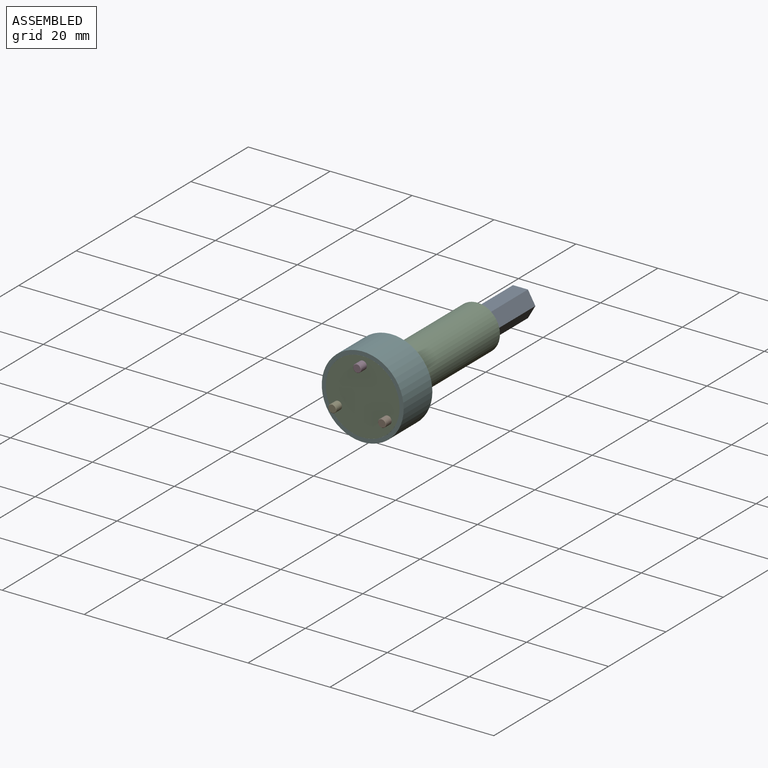
[diagram: assembled view]
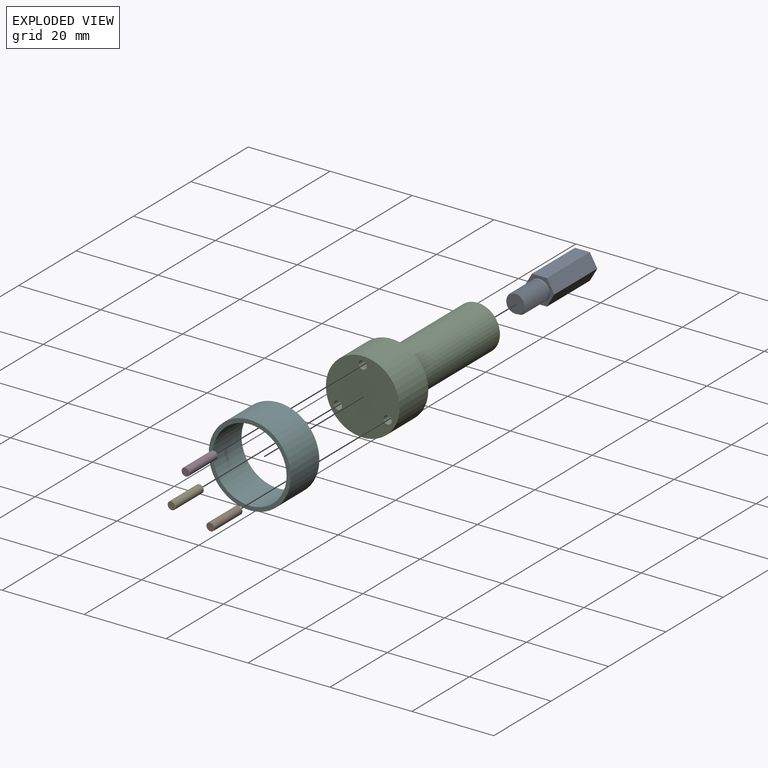
[diagram: exploded view]
GUIDED TOUR — MATED ASSEMBLY (Onshape document 092ec725a331ddb0efb27aa2, AutoMate assembly 092ec725a331ddb0efb27aa2_86ece3228cd0cb55a92882b9_87beb1c356dee27f2c7c34d8_default)

This assembly has 6 components, labeled P0..P5 below (a component is one placed occurrence of a part; the same part can appear more than once), held together by 6 mates. A mate is a constraint between two components; its type names the relative motion it leaves free:
  FASTENED — locks the two components together rigidly (no relative motion),
  PARALLEL — keeps the two listed directions parallel.
Axis/direction vectors are unit vectors and 'through' points are millimeter coordinates, both in the assembly's world frame.

MATES
  1. FASTENED "Fastened 4": P4 <-> P2, direction (0.000, 1.000, 0.000) through (-6.02, -14.93, -2.67) mm
  2. PARALLEL "Parallel 1": P0 <-> P2, direction (0.000, -1.000, 0.000) through (-0.23, 9.07, 0.78) mm
  3. FASTENED "Fastened 5": P5 <-> P2, direction (0.000, 1.000, 0.000) through (0.04, -17.93, 0.83) mm
  4. FASTENED "Fastened 2": P3 <-> P2, direction (0.000, 1.000, 0.000) through (0.04, -14.93, 7.83) mm
  5. FASTENED "Fastened 3": P1 <-> P2, direction (0.000, 1.000, 0.000) through (6.10, -14.93, -2.67) mm
  6. FASTENED "Fastened 1": P0 <-> P2, direction (0.000, -1.000, 0.000) through (0.04, 17.07, 0.83) mm

ASSEMBLY ORDER
  1. P2 — the base component [order heuristic]
  2. P5 — core [order heuristic]
  3. P0 — core [order heuristic]
  4. P3 [order verified]
  5. P4 [order verified]
  6. P1 [order verified]
(P3 verified with a relaxed clearance tolerance: the source model stores slight part interference there.)
Order-tag legend:
  [order verified] — this step's position reverses a verified removal order: the component was checked to insert without passing through the ones already placed.
  [order heuristic] — the first 3 components form the assembly's core: parts whose collision-free extraction could not be verified, listed in mate-graph order.

Of the 6 components, 5 carry the full construction recipe — the FeatureScript program that regenerates the part's solid from scratch; the rest are supplied as boundary geometry only.
Each toured component is shown spotlighted twice — in the assembled view, then in the exploded view, where a leader line traces a displaced component back to its assembled socket (saturated green if recipe-attached, orange if geometry-only; every other component desaturated gray) — followed by its recipe or geometry summary and the mates that hold it.
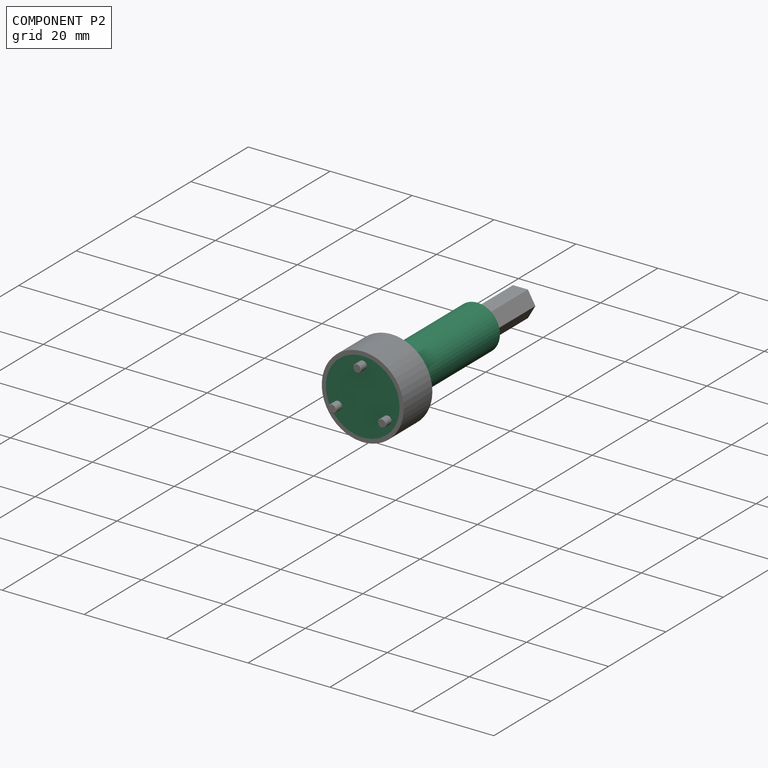
[diagram: component P2 — assembled]
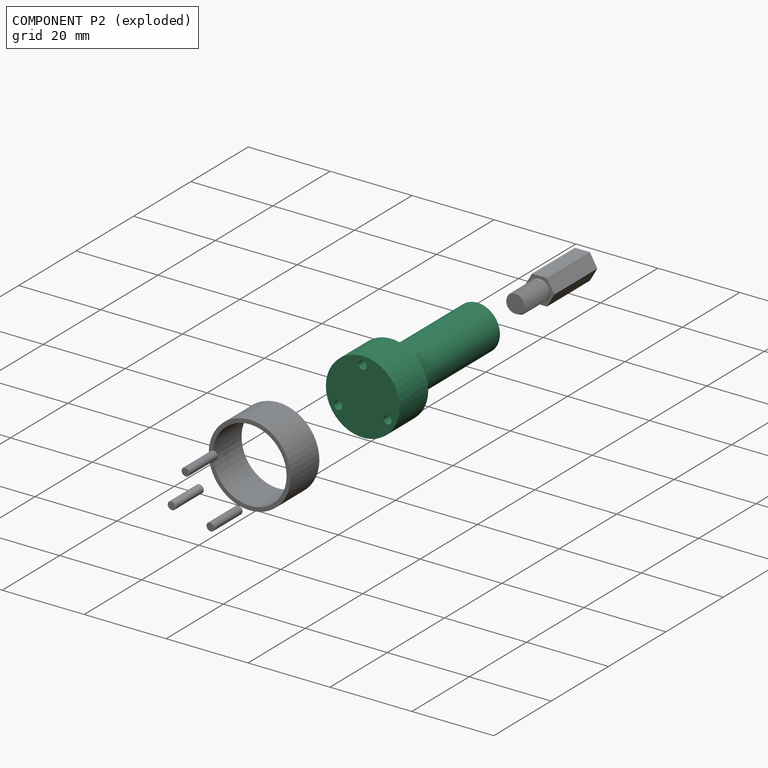
[diagram: component P2 — exploded]
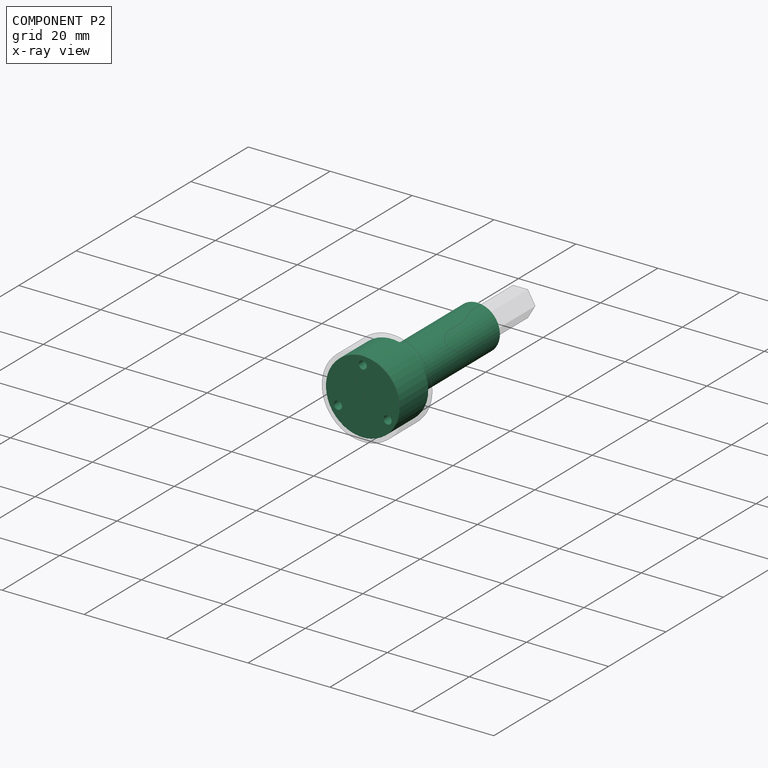
[diagram: component P2 — x-ray view]
COMPONENT P2 — recipe-attached (CADFS 00260168, mesh-verified: the recipe's output STEP matches this component's geometry to below the mesh-comparison resolution (tessellation chordal tolerance ~0.0711 mm)).
Held by: FASTENED mate "Fastened 4" to P4; PARALLEL mate "Parallel 1" to P0; FASTENED mate "Fastened 5" to P5; FASTENED mate "Fastened 2" to P3; FASTENED mate "Fastened 3" to P1; FASTENED mate "Fastened 1" to P0.
Construction recipe (FeatureScript — the CAD program that rebuilds this solid; sketch coordinates are in the units given by the * unit suffixes, e.g. mm):

FeatureScript 1511;
import(path : "onshape/std/geometry.fs", version : "1511.0");
import(path : "onshape/std/common.fs", version : "1511.0");
const mm = millimeter;
const VERTEX = EntityType.VERTEX;
const EDGE = EntityType.EDGE;
const FACE = EntityType.FACE;
const BODY = EntityType.BODY;
function v(x, y){return vector(x, y);}
function OD(order){return orderDisambiguation(order);}
function OSD(set){return originalSetDisambiguation(set);}
function TD(topology){return topologyDisambiguation(topology);}
function TDD(query){return trueDependencyDisambiguation(query);}
function sQuery(a, b, c) {return sketchEntityQuery(a, b, c);}

annotation { "Feature Type Name" : "Feature", "Feature Type Description" : "" }
export const myFeature = defineFeature(function(context is Context, id is Id, definition is map)
    precondition{}
    {
        {
            var Q0;
            Q0=qCreatedBy(makeId("Front.planeOp"),FACE);
            var sketch = newSketch(context, id + "F0", { "sketchPlane" : qUnion([Q0])});
            skCircle(sketch, "E0", {"center": v(0, 0) * mm, "radius": 9 * mm});
            skSolve(sketch);
        }
        {
            var Q0;
            Q0=makeQuery(id+"F0.imprint","IMPRINT",FACE,{"disambiguationData":[TD([[makeQuery(id+"F0.imprint","IMPRINT",EDGE,{"derivedFrom":sQuery(id+"F0.wireOp",EDGE,"E0")}),1.0]])]});
            extrude(context, id + "F1", {"entities" : qUnion([Q0]), "endBound" : BoundingType.SYMMETRIC, "depth" : 40 * mm});
        }
        {
            var Q0;
            Q0=makeQuery(id+"F1.opExtrude","CAP_FACE",FACE,{"disambiguationData":[OSD([sQuery(id+"F0.wireOp",EDGE,"E0")])],"isStart":false});
            var sketch = newSketch(context, id + "F2", { "sketchPlane" : qUnion([Q0])});
            skArc(sketch, "E1", {"start": v(-1, 6.93) * mm, "mid": v(-6.06, 3.5) * mm, "end": v(-6.5, -2.6) * mm});
            skCircle(sketch, "E2", {"center": v(0, 7) * mm, "radius": 1 * mm});
            skCircle(sketch, "E3.1.0", {"center": v(-6.06, -3.5) * mm, "radius": 1 * mm});
            skCircle(sketch, "E3.2.0", {"center": v(6.06, -3.5) * mm, "radius": 1 * mm});
            skArc(sketch, "E4.trimOffspring", {"start": v(-5.5, -4.33) * mm, "mid": v(0, -7) * mm, "end": v(5.5, -4.33) * mm});
            skArc(sketch, "E5.trimOffspring", {"start": v(6.5, -2.6) * mm, "mid": v(6.06, 3.5) * mm, "end": v(1, 6.93) * mm});
            skCircle(sketch, "E6", {"center": v(-4, 0) * mm, "radius": 1.5 * mm});
            skCircle(sketch, "E7.MirrorC", {"center": v(4, 0) * mm, "radius": 1.5 * mm});
            skCircle(sketch, "E8", {"center": v(-6.06, -3.5) * mm, "radius": 0.75 * mm});
            skCircle(sketch, "E9.1.0", {"center": v(6.06, -3.5) * mm, "radius": 0.75 * mm});
            skCircle(sketch, "E9.2.0", {"center": v(0, 7) * mm, "radius": 0.75 * mm});
            skSolve(sketch);
        }
        {
            var Q0;
            {var subQ0=sQuery(id+"F2.wireOp",EDGE,"E2");var subQ1=makeQuery(id+"F2.imprint","INTERSECT",VERTEX,{"derivedFrom":[sQuery(id+"F2.wireOp",EDGE,"E1"),subQ0]});Q0=makeQuery(id+"F2.imprint","IMPRINT",FACE,{"disambiguationData":[TD([[makeQuery(id+"F2.imprint","IMPRINT",EDGE,{"disambiguationData":[TD([[subQ1,-1.0]])],"derivedFrom":subQ0}),1.0]])]});}
            var Q1;
            {var subQ0=sQuery(id+"F2.wireOp",EDGE,"E3.1.0");var subQ1=makeQuery(id+"F2.imprint","INTERSECT",VERTEX,{"derivedFrom":[sQuery(id+"F2.wireOp",EDGE,"E1"),subQ0]});Q1=makeQuery(id+"F2.imprint","IMPRINT",FACE,{"disambiguationData":[TD([[makeQuery(id+"F2.imprint","IMPRINT",EDGE,{"disambiguationData":[TD([[subQ1,1.0]])],"derivedFrom":subQ0}),1.0]])]});}
            var Q2;
            {var subQ0=sQuery(id+"F2.wireOp",EDGE,"E3.2.0");var subQ1=makeQuery(id+"F2.imprint","INTERSECT",VERTEX,{"derivedFrom":[subQ0,sQuery(id+"F2.wireOp",EDGE,"E4.trimOffspring")]});Q2=makeQuery(id+"F2.imprint","IMPRINT",FACE,{"disambiguationData":[TD([[makeQuery(id+"F2.imprint","IMPRINT",EDGE,{"disambiguationData":[TD([[subQ1,1.0]])],"derivedFrom":subQ0}),1.0]])]});}
            extrude(context, id + "F3", {"entities" : qUnion([Q0, Q1, Q2]), "operationType" : NewBodyOperationType.REMOVE, "oppositeDirection" : true, "depth" : 8 * mm});
        }
        {
            var Q0;
            Q0=makeQuery(id+"F1.opExtrude","CAP_FACE",FACE,{"disambiguationData":[OSD([sQuery(id+"F0.wireOp",EDGE,"E0")])],"isStart":true});
            var sketch = newSketch(context, id + "F4", { "sketchPlane" : qUnion([Q0])});
            skCircle(sketch, "E10", {"center": v(0, 0) * mm, "radius": 5.5 * mm});
            skSolve(sketch);
        }
        {
            var Q0;
            Q0=makeQuery(id+"F4.imprint","IMPRINT",FACE,{"disambiguationData":[TD([[makeQuery(id+"F4.imprint","IMPRINT",EDGE,{"derivedFrom":sQuery(id+"F4.wireOp",EDGE,"E10")}),-1.0]])]});
            extrude(context, id + "F5", {"entities" : qUnion([Q0]), "operationType" : NewBodyOperationType.REMOVE, "oppositeDirection" : true, "depth" : 30 * mm});
        }
        {
            var Q0;
            Q0=makeQuery(id+"F2.imprint","IMPRINT",FACE,{"disambiguationData":[TD([[makeQuery(id+"F2.imprint","IMPRINT",EDGE,{"derivedFrom":sQuery(id+"F2.wireOp",EDGE,"E8")}),1.0]])]});
            var Q1;
            Q1=makeQuery(id+"F2.imprint","IMPRINT",FACE,{"disambiguationData":[TD([[makeQuery(id+"F2.imprint","IMPRINT",EDGE,{"derivedFrom":sQuery(id+"F2.wireOp",EDGE,"E9.2.0")}),1.0]])]});
            var Q2;
            Q2=makeQuery(id+"F2.imprint","IMPRINT",FACE,{"disambiguationData":[TD([[makeQuery(id+"F2.imprint","IMPRINT",EDGE,{"derivedFrom":sQuery(id+"F2.wireOp",EDGE,"E9.1.0")}),1.0]])]});
            extrude(context, id + "F6", {"entities" : qUnion([Q0, Q1, Q2]), "operationType" : NewBodyOperationType.REMOVE, "oppositeDirection" : true, "depth" : 10 * mm});
        }
        {
            var Q0;
            Q0=makeQuery(id+"F1.opExtrude","CAP_FACE",FACE,{"disambiguationData":[OSD([sQuery(id+"F0.wireOp",EDGE,"E0")])],"isStart":true});
            var sketch = newSketch(context, id + "F7", { "sketchPlane" : qUnion([Q0])});
            skCircle(sketch, "E11", {"center": v(0, 0) * mm, "radius": 2.5 * mm});
            skSolve(sketch);
        }
        {
            var Q0;
            Q0=makeQuery(id+"F7.imprint","IMPRINT",FACE,{"disambiguationData":[TD([[makeQuery(id+"F7.imprint","IMPRINT",EDGE,{"derivedFrom":sQuery(id+"F7.wireOp",EDGE,"E11")}),1.0]])]});
            extrude(context, id + "F8", {"entities" : qUnion([Q0]), "operationType" : NewBodyOperationType.REMOVE, "oppositeDirection" : true, "depth" : 10 * mm});
        }
    });
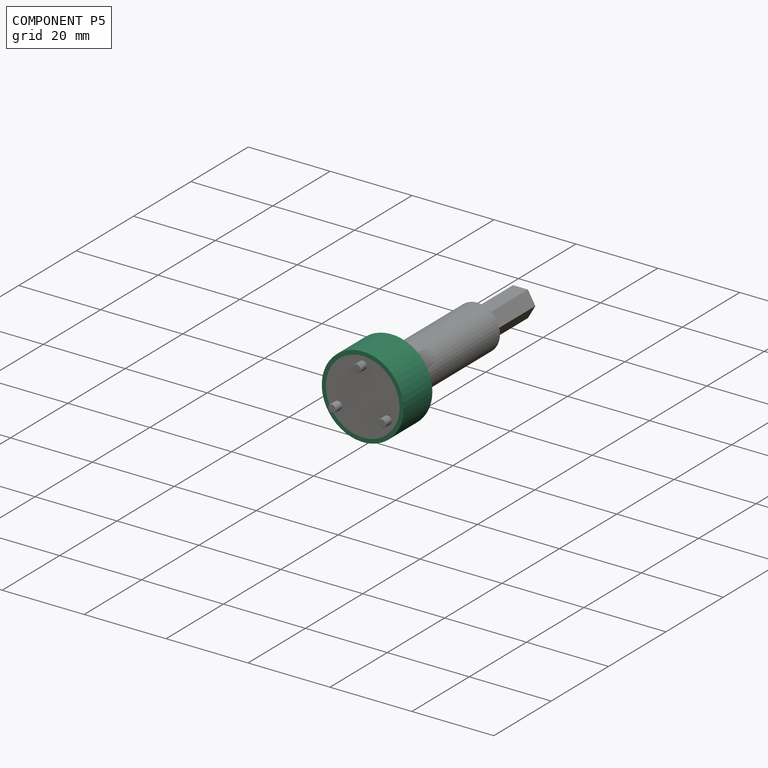
[diagram: component P5 — assembled]
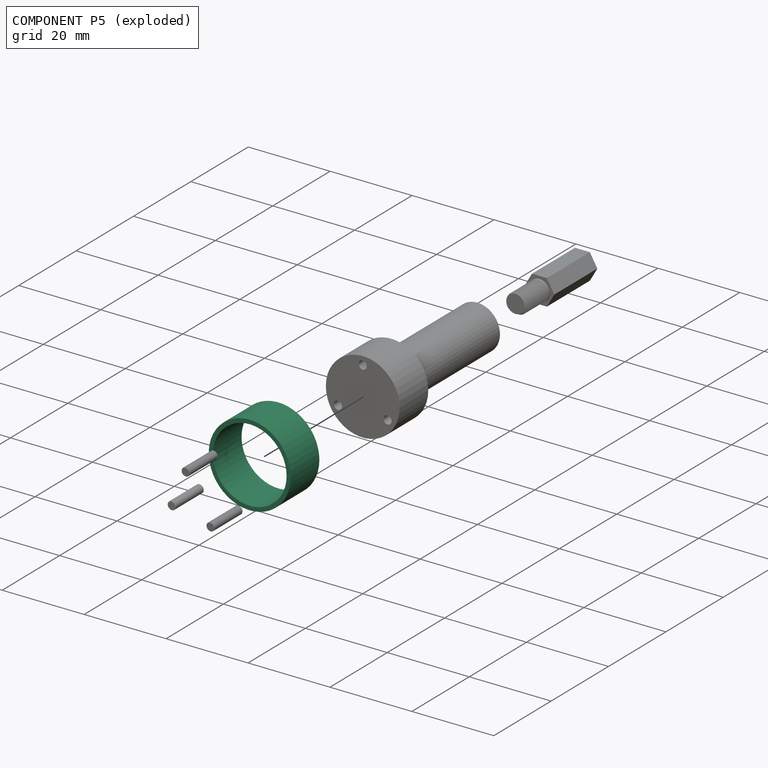
[diagram: component P5 — exploded]
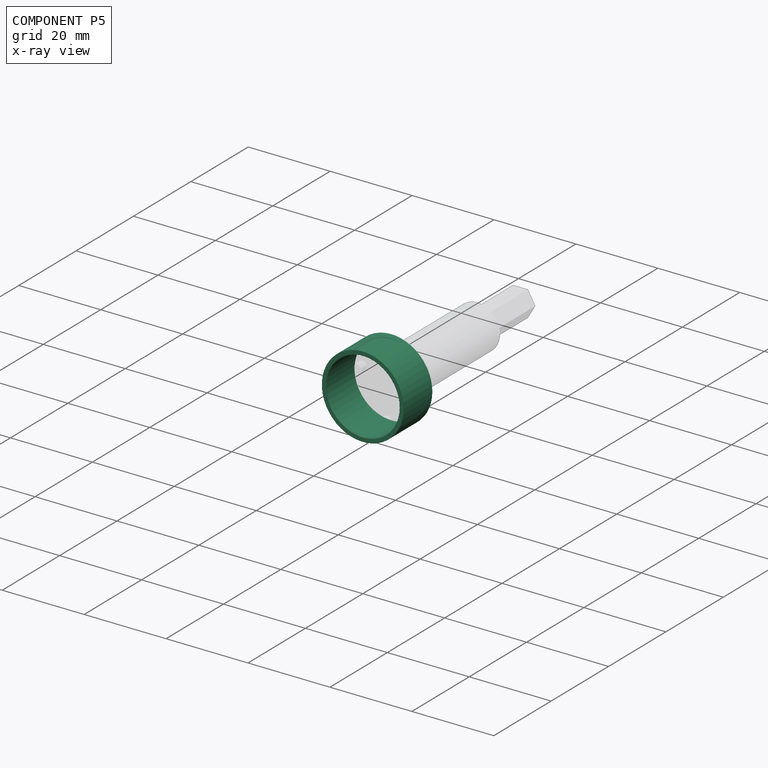
[diagram: component P5 — x-ray view]
COMPONENT P5 — recipe-attached (CADFS 00260169, mesh-verified: the recipe's output STEP matches this component's geometry to below the mesh-comparison resolution (tessellation chordal tolerance ~0.045 mm)).
Held by: FASTENED mate "Fastened 5" to P2.
Construction recipe (FeatureScript — the CAD program that rebuilds this solid; sketch coordinates are in the units given by the * unit suffixes, e.g. mm):

FeatureScript 1511;
import(path : "onshape/std/geometry.fs", version : "1511.0");
import(path : "onshape/std/common.fs", version : "1511.0");
const mm = millimeter;
const VERTEX = EntityType.VERTEX;
const EDGE = EntityType.EDGE;
const FACE = EntityType.FACE;
const BODY = EntityType.BODY;
function v(x, y){return vector(x, y);}
function OD(order){return orderDisambiguation(order);}
function OSD(set){return originalSetDisambiguation(set);}
function TD(topology){return topologyDisambiguation(topology);}
function TDD(query){return trueDependencyDisambiguation(query);}
function sQuery(a, b, c) {return sketchEntityQuery(a, b, c);}

annotation { "Feature Type Name" : "Feature", "Feature Type Description" : "" }
export const myFeature = defineFeature(function(context is Context, id is Id, definition is map)
    precondition{}
    {
        {
            var Q0;
            Q0=qCreatedBy(makeId("Front.planeOp"),FACE);
            var sketch = newSketch(context, id + "F0", { "sketchPlane" : qUnion([Q0])});
            skCircle(sketch, "E0", {"center": v(0, 0) * mm, "radius": 10 * mm});
            skCircle(sketch, "E1", {"center": v(0, 0) * mm, "radius": 9 * mm});
            skSolve(sketch);
        }
        {
            var Q0;
            Q0=makeQuery(id+"F0.imprint","IMPRINT",FACE,{"disambiguationData":[TD([[makeQuery(id+"F0.imprint","IMPRINT",EDGE,{"derivedFrom":sQuery(id+"F0.wireOp",EDGE,"E0")}),1.0]])]});
            extrude(context, id + "F1", {"entities" : qUnion([Q0]), "endBound" : BoundingType.SYMMETRIC, "depth" : 10 * mm});
        }
    });
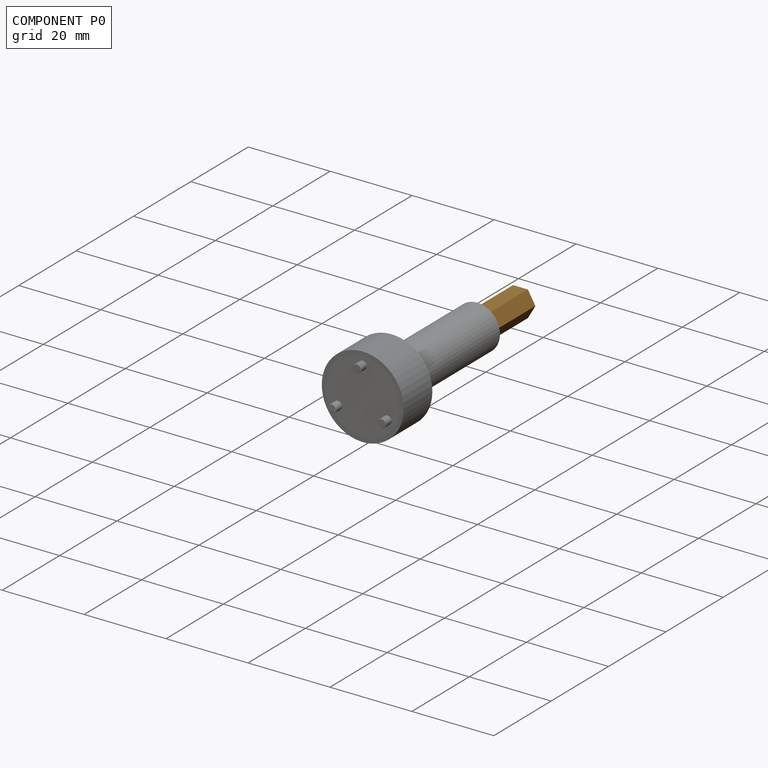
[diagram: component P0 — assembled]
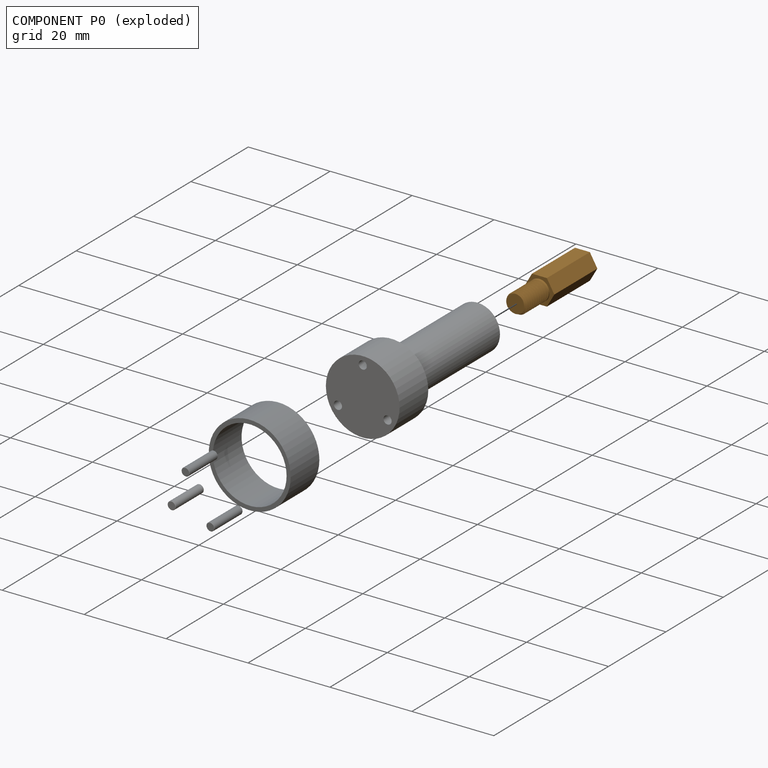
[diagram: component P0 — exploded]
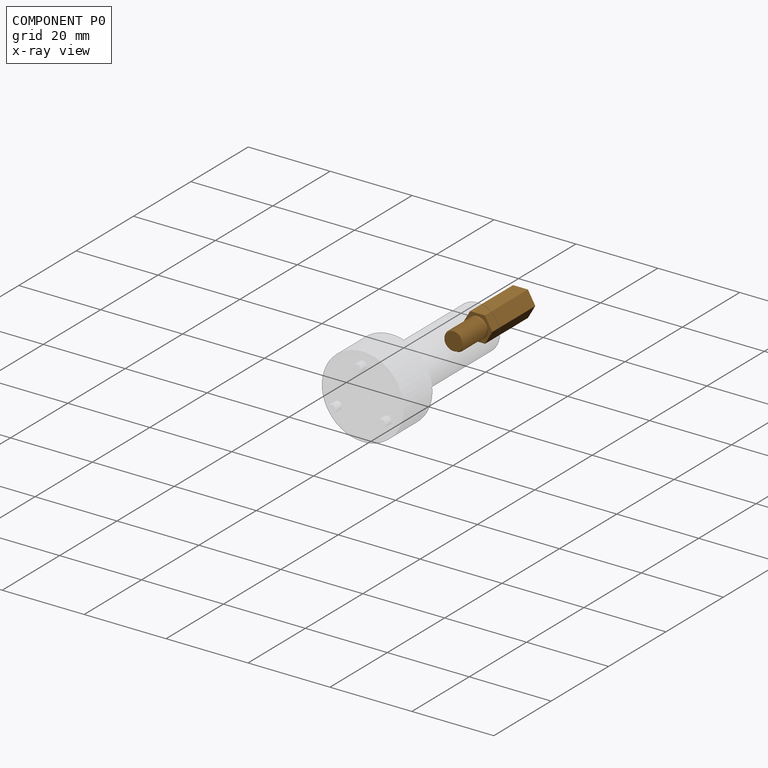
[diagram: component P0 — x-ray view]
COMPONENT P0 — geometry summary (no construction recipe available for this part):
  bounding box: 24.0 x 7.8 x 6.8 mm
  B-rep topology: 1 solid, 13 faces, 56 edges
  volume: 635 mm^3 (50% of its bounding box)
Held by: PARALLEL mate "Parallel 1" to P2; FASTENED mate "Fastened 1" to P2.
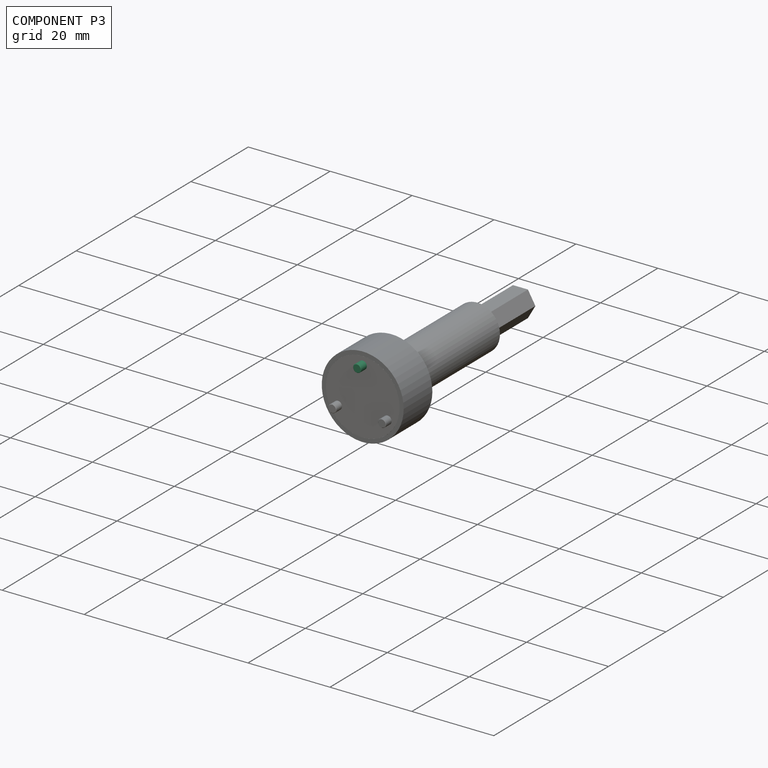
[diagram: component P3 — assembled]
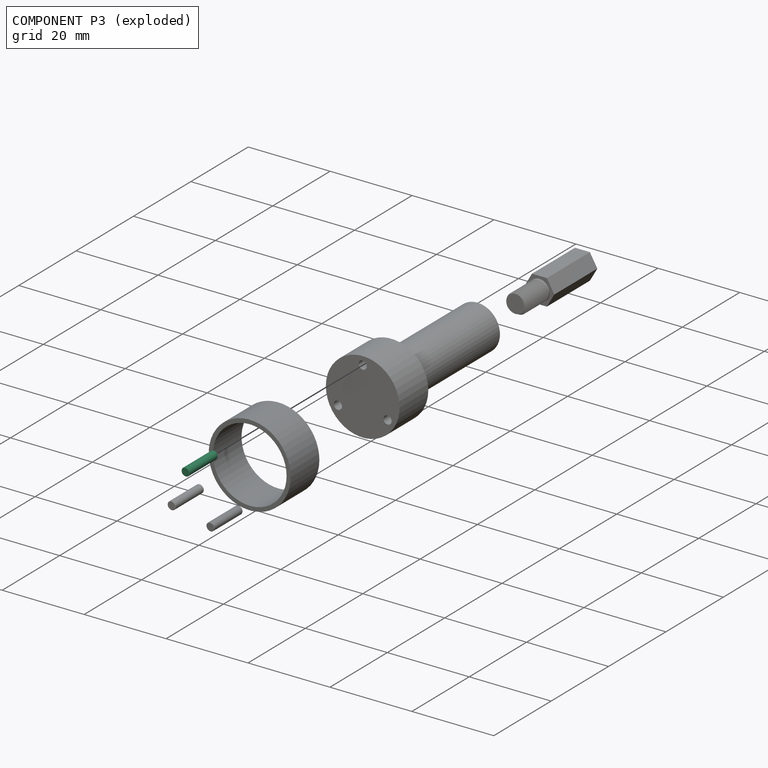
[diagram: component P3 — exploded]
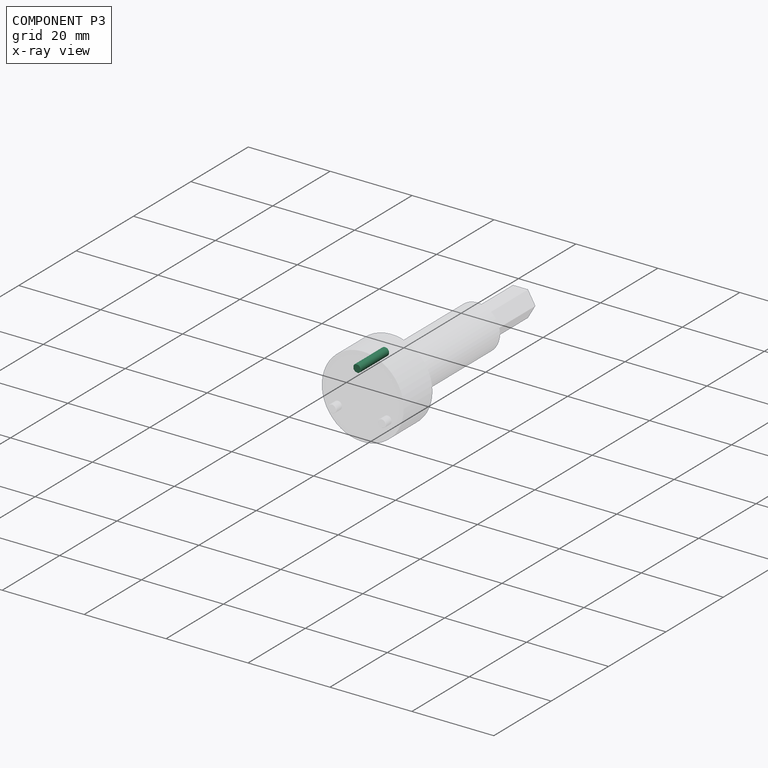
[diagram: component P3 — x-ray view]
COMPONENT P3 — same part as P1 (CADFS 00260171); its construction recipe is shown at P1.
Held by: FASTENED mate "Fastened 2" to P2.
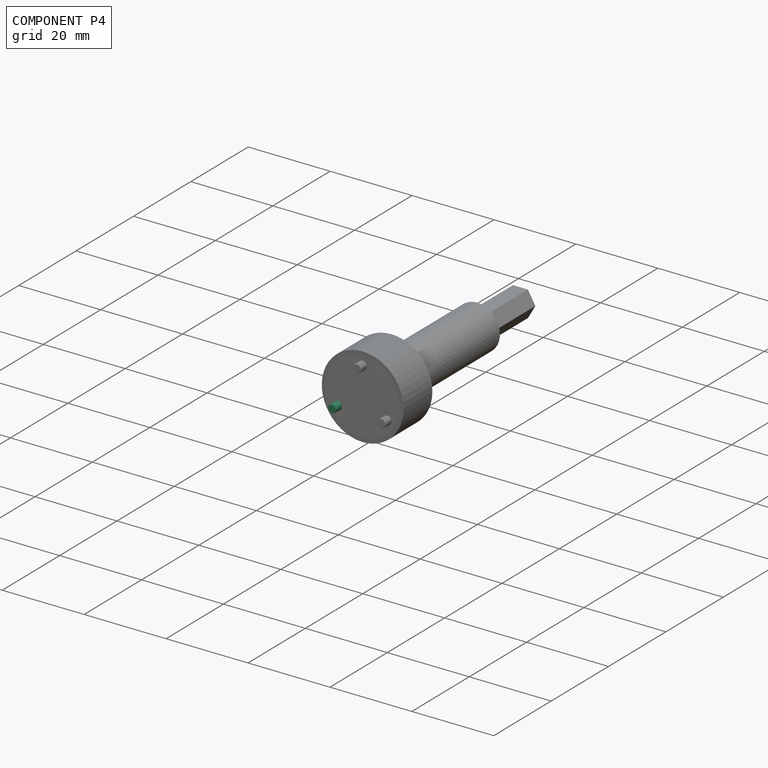
[diagram: component P4 — assembled]
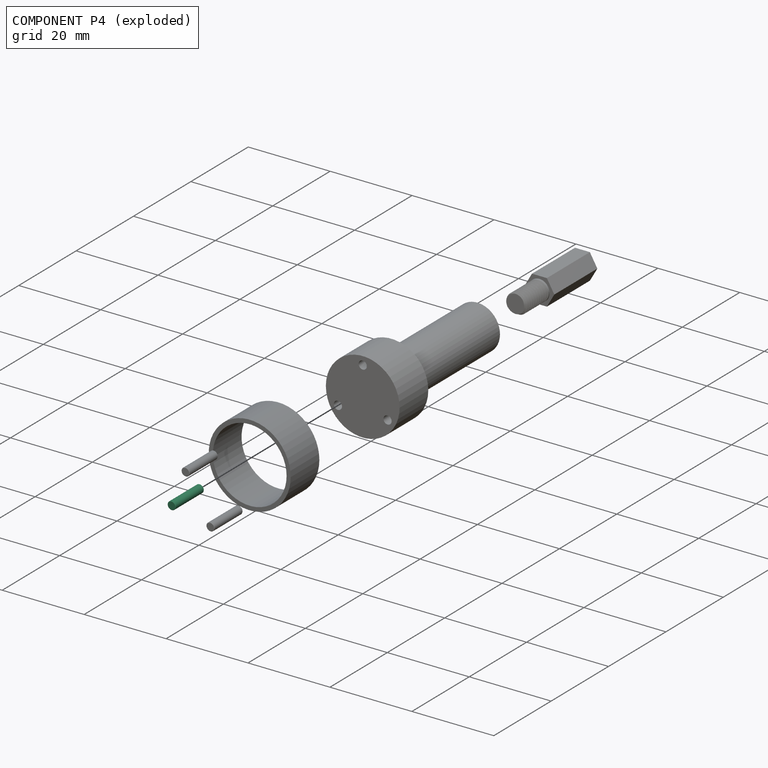
[diagram: component P4 — exploded]
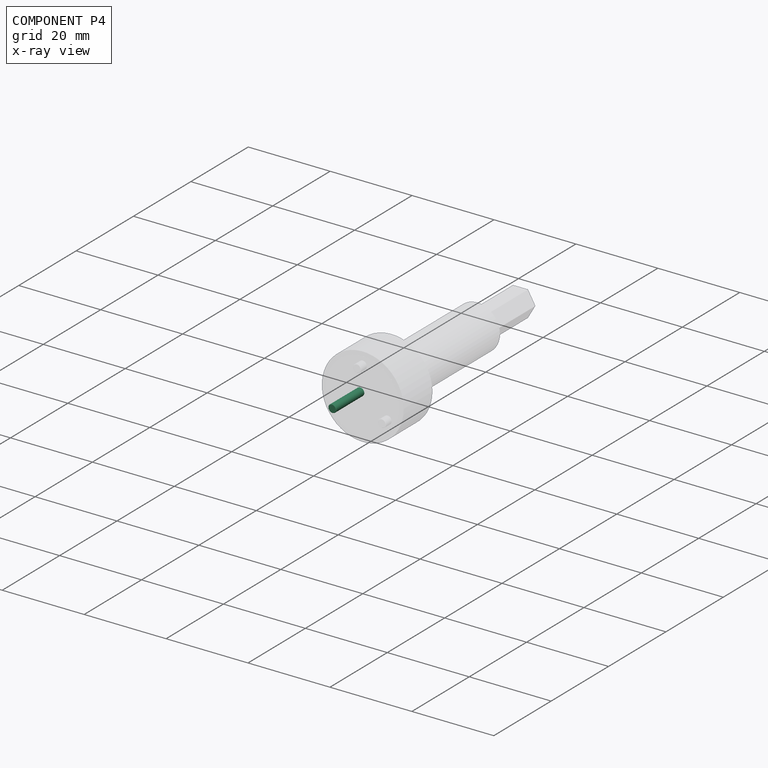
[diagram: component P4 — x-ray view]
COMPONENT P4 — same part as P1 (CADFS 00260171); its construction recipe is shown at P1.
Held by: FASTENED mate "Fastened 4" to P2.
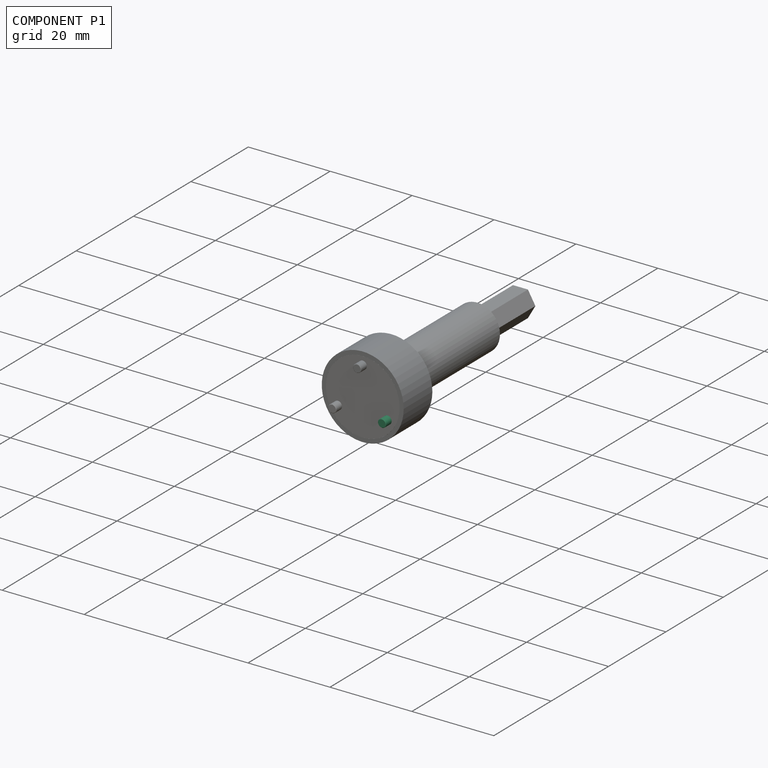
[diagram: component P1 — assembled]
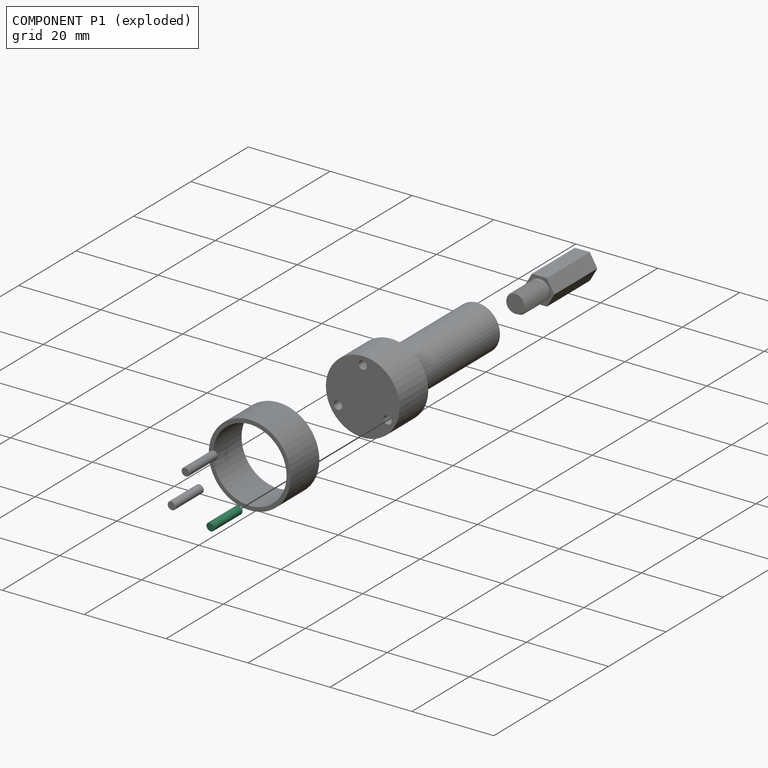
[diagram: component P1 — exploded]
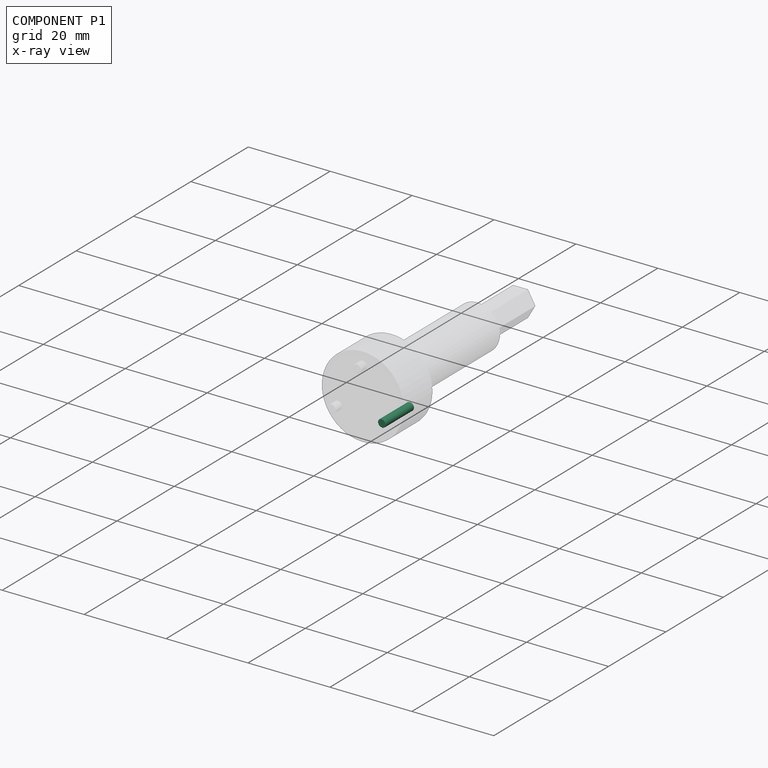
[diagram: component P1 — x-ray view]
COMPONENT P1 — recipe-attached (CADFS 00260171, mesh-verified: the recipe's output STEP matches this component's geometry to below the mesh-comparison resolution (tessellation chordal tolerance ~0.0156 mm)).
Held by: FASTENED mate "Fastened 3" to P2.
Construction recipe (FeatureScript — the CAD program that rebuilds this solid; sketch coordinates are in the units given by the * unit suffixes, e.g. mm):

FeatureScript 1511;
import(path : "onshape/std/geometry.fs", version : "1511.0");
import(path : "onshape/std/common.fs", version : "1511.0");
const mm = millimeter;
const VERTEX = EntityType.VERTEX;
const EDGE = EntityType.EDGE;
const FACE = EntityType.FACE;
const BODY = EntityType.BODY;
function v(x, y){return vector(x, y);}
function OD(order){return orderDisambiguation(order);}
function OSD(set){return originalSetDisambiguation(set);}
function TD(topology){return topologyDisambiguation(topology);}
function TDD(query){return trueDependencyDisambiguation(query);}
function sQuery(a, b, c) {return sketchEntityQuery(a, b, c);}

annotation { "Feature Type Name" : "Feature", "Feature Type Description" : "" }
export const myFeature = defineFeature(function(context is Context, id is Id, definition is map)
    precondition{}
    {
        {
            var Q0;
            Q0=qCreatedBy(makeId("Front.planeOp"),FACE);
            var sketch = newSketch(context, id + "F0", { "sketchPlane" : qUnion([Q0])});
            skCircle(sketch, "E0", {"center": v(0, 0) * mm, "radius": 1 * mm});
            skSolve(sketch);
        }
        {
            var Q0;
            Q0=makeQuery(id+"F0.imprint","IMPRINT",FACE,{"disambiguationData":[TD([[makeQuery(id+"F0.imprint","IMPRINT",EDGE,{"derivedFrom":sQuery(id+"F0.wireOp",EDGE,"E0")}),1.0]])]});
            extrude(context, id + "F1", {"entities" : qUnion([Q0]), "endBound" : BoundingType.SYMMETRIC, "depth" : 10 * mm});
        }
        {
            var Q0;
            Q0=makeQuery(id+"F1.opExtrude","CAP_EDGE",EDGE,{"disambiguationData":[OSD([sQuery(id+"F0.wireOp",EDGE,"E0")])],"isStart":true});
            chamfer(context, id + "F2", {"entities" : qUnion([Q0]), "width" : .2 * mm, "tangentPropagation" : true});
        }
        {
            var Q0;
            Q0=makeQuery(id+"F1.opExtrude","CAP_EDGE",EDGE,{"disambiguationData":[OSD([sQuery(id+"F0.wireOp",EDGE,"E0")])],"isStart":false});
            chamfer(context, id + "F3", {"entities" : qUnion([Q0]), "width" : .1 * mm, "tangentPropagation" : true});
        }
    });
PROVENANCE & LICENSES
Assembly (occurrences, transforms, mates, per-part STEP geometry): AutoMate dataset, Zenodo record 7776208, CC0.
Construction recipes: CADFS (HuggingFace VladPyatov/CADFS, CC-BY-4.0, layered over the ABC dataset), FeatureScript reconstruction programs keyed by ABC model id.
Join: ABC meta listings map ABC model id -> Onshape documentId; within a shared document, parts are matched by geometric signature (bounding-box dims + volume at 0.1% relative tolerance, exact B-rep face/solid counts).
Verification: 5 of this assembly's 6 components carry a recipe attachment, and every attachment is mesh-verified: the CADFS STEP and the AutoMate member STEP were compared as meshes in their shared local frame (symmetric sampled-point-to-mesh distance); worst across the 5 attachments: below the mesh-comparison resolution (tessellation chordal tolerance ~0.0711 mm) on a 47 mm part.
Renders: orthographic iso camera (az 35 / el 25); the floor grid conveys scale (grid pitch printed in each image; no ruler). In the exploded view each component is displaced by its stored offset vector: the offsets alone carry the explosion direction (mate normal/axis signs are not orientation cues and do not encode it), and separation distances are assigned per mate-chain, not proportionally to assembly-order depth.
